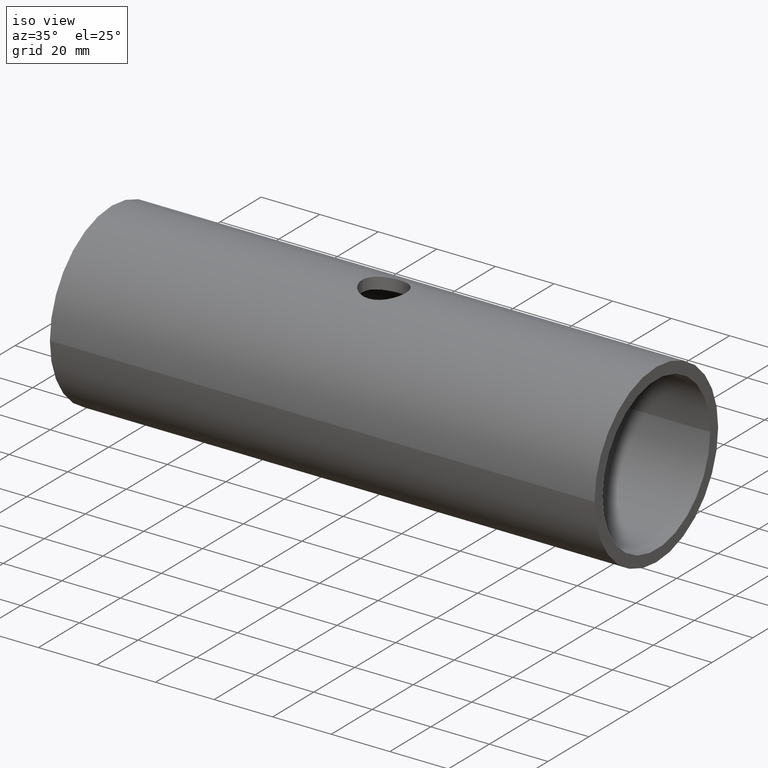
[diagram: clean part render]
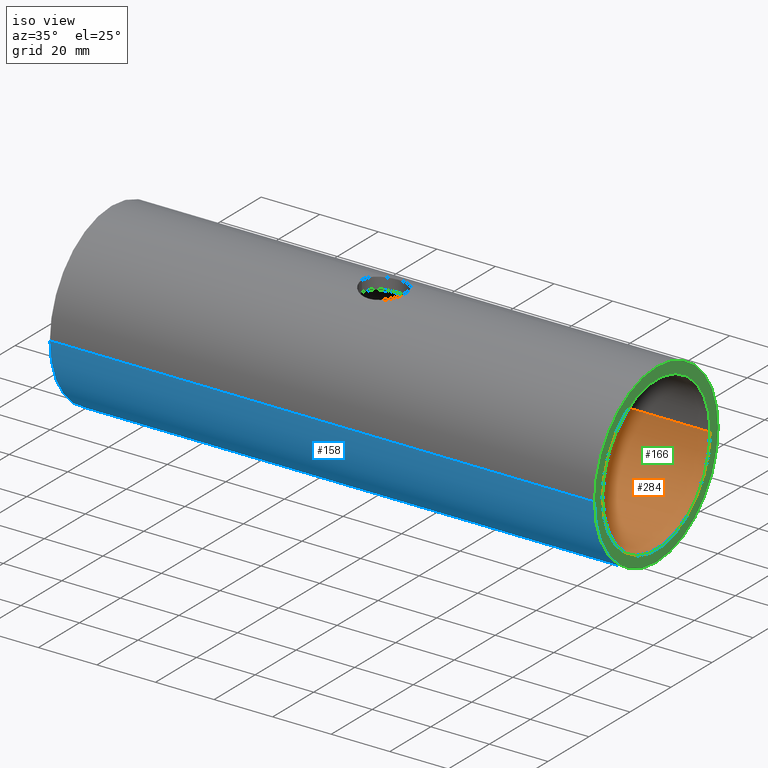
[diagram: same view with three faces highlighted in distinct colors, each labeled with its STEP entity id]
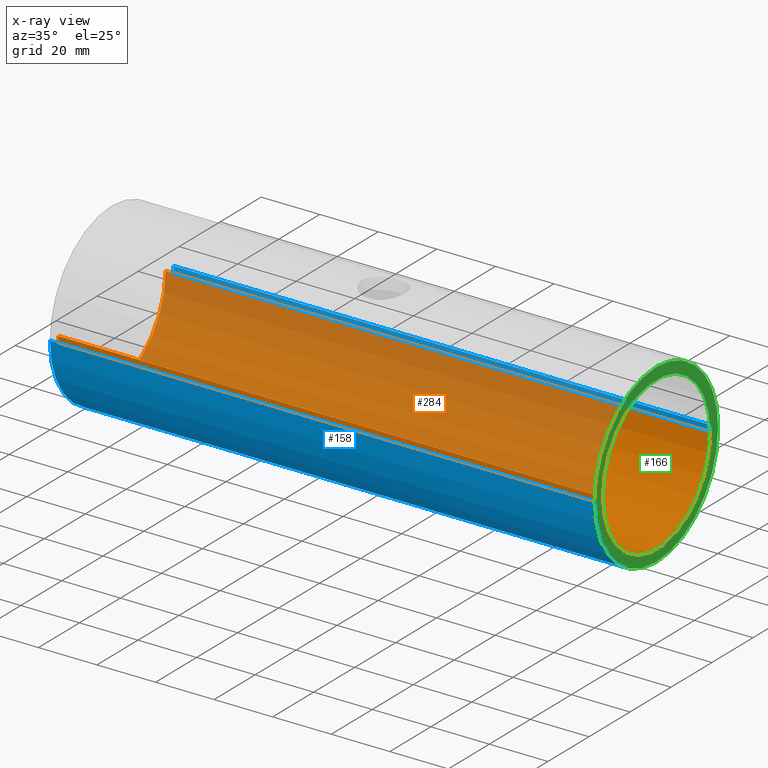
[diagram: x-ray of the same camera — body ghosted, the three highlighted faces saturated]
A machine part, iso view with three faces highlighted in distinct colors.
The next image is the same camera in x-ray (body ghosted, the three faces saturated) — at least one of them is partly hidden behind the body in this view.
Their STEP definitions:

[orange] entity #284 — the highlighted cylindrical surface (partial cylindrical patch) has radius 26.25 mm, axis along (1, 0, -0).
#27 = DIRECTION ( 'NONE',  ( 1.000000000000000000, 3.061616997868383141E-16, -0.000000000000000000 ) ) ;
#34 = LINE ( 'NONE', #222, #143 ) ;
#42 = DIRECTION ( 'NONE',  ( 1.000000000000000000, 3.061616997868383141E-16, -0.000000000000000000 ) ) ;
#55 = DIRECTION ( 'NONE',  ( 5.286776307738840622E-16, -1.000000000000000000, 0.000000000000000000 ) ) ;
#58 = CARTESIAN_POINT ( 'NONE',  ( -93.00000000000000000, -1.665519646840400224E-14, 0.000000000000000000 ) ) ;
#77 = EDGE_CURVE ( 'NONE', #357, #145, #296, .T. ) ;
#85 = CARTESIAN_POINT ( 'NONE',  ( -93.00000000000001421, 26.24999999999998224, 0.000000000000000000 ) ) ;
#87 = CARTESIAN_POINT ( 'NONE',  ( 93.00000000000000000, 4.029087969194792054E-14, 0.000000000000000000 ) ) ;
#88 = EDGE_CURVE ( 'NONE', #466, #98, #34, .T. ) ;
#98 = VERTEX_POINT ( 'NONE', #263 ) ;
#112 = DIRECTION ( 'NONE',  ( -5.286776307738840622E-16, 1.000000000000000000, 0.000000000000000000 ) ) ;
#133 = EDGE_LOOP ( 'NONE', ( #436, #214, #292, #320 ) ) ;
#143 = VECTOR ( 'NONE', #383, 1000.000000000000000 ) ;
#144 = AXIS2_PLACEMENT_3D ( 'NONE', #87, #202, #422 ) ;
#145 = VERTEX_POINT ( 'NONE', #279 ) ;
#168 = CIRCLE ( 'NONE', #228, 26.25000000000000000 ) ;
#179 = FACE_OUTER_BOUND ( 'NONE', #133, .T. ) ;
#202 = DIRECTION ( 'NONE',  ( -1.000000000000000000, -3.061616997868383141E-16, 0.000000000000000000 ) ) ;
#203 = AXIS2_PLACEMENT_3D ( 'NONE', #329, #27, #112 ) ;
#204 = DIRECTION ( 'NONE',  ( -1.000000000000000000, -3.061616997868383141E-16, 0.000000000000000000 ) ) ;
#206 = EDGE_CURVE ( 'NONE', #98, #145, #437, .T. ) ;
#214 = ORIENTED_EDGE ( 'NONE', *, *, #77, .T. ) ;
#222 = CARTESIAN_POINT ( 'NONE',  ( -93.00000000000001421, 26.24999999999998224, 0.000000000000000000 ) ) ;
#228 = AXIS2_PLACEMENT_3D ( 'NONE', #58, #204, #55 ) ;
#233 = EDGE_CURVE ( 'NONE', #466, #357, #168, .T. ) ;
#241 = VECTOR ( 'NONE', #42, 1000.000000000000000 ) ;
#253 = CYLINDRICAL_SURFACE ( 'NONE', #203, 26.25000000000000000 ) ;
#263 = CARTESIAN_POINT ( 'NONE',  ( 92.99999999999998579, 26.25000000000003553, 0.000000000000000000 ) ) ;
#279 = CARTESIAN_POINT ( 'NONE',  ( 93.00000000000001421, -26.24999999999995737, 3.214697847761801189E-15 ) ) ;
#284 = ADVANCED_FACE ( 'NONE', ( #179 ), #253, .F. ) ;
#292 = ORIENTED_EDGE ( 'NONE', *, *, #206, .F. ) ;
#296 = LINE ( 'NONE', #443, #241 ) ;
#320 = ORIENTED_EDGE ( 'NONE', *, *, #88, .F. ) ;
#329 = CARTESIAN_POINT ( 'NONE',  ( -93.00000000000000000, -1.665519646840400224E-14, 0.000000000000000000 ) ) ;
#357 = VERTEX_POINT ( 'NONE', #412 ) ;
#383 = DIRECTION ( 'NONE',  ( 1.000000000000000000, 3.061616997868383141E-16, -0.000000000000000000 ) ) ;
#412 = CARTESIAN_POINT ( 'NONE',  ( -92.99999999999998579, -26.25000000000001421, 3.214697847761804739E-15 ) ) ;
#422 = DIRECTION ( 'NONE',  ( 5.286776307738840622E-16, -1.000000000000000000, 0.000000000000000000 ) ) ;
#436 = ORIENTED_EDGE ( 'NONE', *, *, #233, .T. ) ;
#437 = CIRCLE ( 'NONE', #144, 26.25000000000000000 ) ;
#443 = CARTESIAN_POINT ( 'NONE',  ( -92.99999999999998579, -26.25000000000001776, 3.214697847761801189E-15 ) ) ;
#466 = VERTEX_POINT ( 'NONE', #85 ) ;

[blue] entity #158 — the highlighted cylindrical surface (partial cylindrical patch) has radius 30.15 mm, axis along (1, 0, -0).
#1 = DIRECTION ( 'NONE',  ( 4.602914695792523219E-16, -1.000000000000000000, 0.000000000000000000 ) ) ;
#26 = VERTEX_POINT ( 'NONE', #159 ) ;
#38 = EDGE_CURVE ( 'NONE', #101, #86, #308, .T. ) ;
#39 = AXIS2_PLACEMENT_3D ( 'NONE', #100, #169, #171 ) ;
#66 = VERTEX_POINT ( 'NONE', #119 ) ;
#70 = EDGE_CURVE ( 'NONE', #26, #66, #259, .T. ) ;
#80 = CARTESIAN_POINT ( 'NONE',  ( -93.00000000000001421, 30.14999999999998082, 0.000000000000000000 ) ) ;
#86 = VERTEX_POINT ( 'NONE', #113 ) ;
#100 = CARTESIAN_POINT ( 'NONE',  ( -93.00000000000000000, -1.665519646840400224E-14, 0.000000000000000000 ) ) ;
#101 = VERTEX_POINT ( 'NONE', #80 ) ;
#113 = CARTESIAN_POINT ( 'NONE',  ( 92.99999999999998579, 30.15000000000004476, 0.000000000000000000 ) ) ;
#117 = CIRCLE ( 'NONE', #465, 30.14999999999999858 ) ;
#119 = CARTESIAN_POINT ( 'NONE',  ( 93.00000000000001421, -30.14999999999995950, 3.692310099429269608E-15 ) ) ;
#124 = DIRECTION ( 'NONE',  ( -1.000000000000000000, -3.061616997868383141E-16, 0.000000000000000000 ) ) ;
#127 = EDGE_CURVE ( 'NONE', #86, #66, #117, .T. ) ;
#139 = DIRECTION ( 'NONE',  ( 1.000000000000000000, 3.061616997868383141E-16, -0.000000000000000000 ) ) ;
#149 = CARTESIAN_POINT ( 'NONE',  ( -92.99999999999998579, -30.15000000000001634, 3.692310099429269608E-15 ) ) ;
#152 = EDGE_CURVE ( 'NONE', #101, #26, #190, .T. ) ;
#154 = VECTOR ( 'NONE', #269, 1000.000000000000000 ) ;
#158 = ADVANCED_FACE ( 'NONE', ( #315 ), #464, .T. ) ;
#159 = CARTESIAN_POINT ( 'NONE',  ( -92.99999999999998579, -30.15000000000001990, 3.692310099429272763E-15 ) ) ;
#165 = CARTESIAN_POINT ( 'NONE',  ( -93.00000000000001421, 30.14999999999998082, 0.000000000000000000 ) ) ;
#169 = DIRECTION ( 'NONE',  ( -1.000000000000000000, -3.061616997868383141E-16, 0.000000000000000000 ) ) ;
#171 = DIRECTION ( 'NONE',  ( 4.602914695792523219E-16, -1.000000000000000000, 0.000000000000000000 ) ) ;
#190 = CIRCLE ( 'NONE', #39, 30.14999999999999858 ) ;
#207 = DIRECTION ( 'NONE',  ( -4.602914695792523219E-16, 1.000000000000000000, 0.000000000000000000 ) ) ;
#217 = ORIENTED_EDGE ( 'NONE', *, *, #152, .F. ) ;
#256 = ORIENTED_EDGE ( 'NONE', *, *, #70, .F. ) ;
#259 = LINE ( 'NONE', #149, #154 ) ;
#269 = DIRECTION ( 'NONE',  ( 1.000000000000000000, 3.061616997868383141E-16, -0.000000000000000000 ) ) ;
#308 = LINE ( 'NONE', #165, #413 ) ;
#315 = FACE_OUTER_BOUND ( 'NONE', #334, .T. ) ;
#330 = ORIENTED_EDGE ( 'NONE', *, *, #127, .T. ) ;
#334 = EDGE_LOOP ( 'NONE', ( #256, #217, #364, #330 ) ) ;
#348 = CARTESIAN_POINT ( 'NONE',  ( 93.00000000000000000, 4.029087969194792054E-14, 0.000000000000000000 ) ) ;
#364 = ORIENTED_EDGE ( 'NONE', *, *, #38, .T. ) ;
#387 = CARTESIAN_POINT ( 'NONE',  ( -93.00000000000000000, -1.665519646840400224E-14, 0.000000000000000000 ) ) ;
#413 = VECTOR ( 'NONE', #454, 1000.000000000000000 ) ;
#454 = DIRECTION ( 'NONE',  ( 1.000000000000000000, 3.061616997868383141E-16, -0.000000000000000000 ) ) ;
#458 = AXIS2_PLACEMENT_3D ( 'NONE', #387, #139, #207 ) ;
#464 = CYLINDRICAL_SURFACE ( 'NONE', #458, 30.14999999999999858 ) ;
#465 = AXIS2_PLACEMENT_3D ( 'NONE', #348, #124, #1 ) ;

[green] entity #166 — the highlighted planar face has unit normal (-1, -0, 0).
#1 = DIRECTION ( 'NONE',  ( 4.602914695792523219E-16, -1.000000000000000000, 0.000000000000000000 ) ) ;
#2 = AXIS2_PLACEMENT_3D ( 'NONE', #445, #294, #103 ) ;
#4 = EDGE_LOOP ( 'NONE', ( #392, #283 ) ) ;
#24 = EDGE_LOOP ( 'NONE', ( #60, #475 ) ) ;
#49 = DIRECTION ( 'NONE',  ( -1.000000000000000000, -3.061616997868383141E-16, 0.000000000000000000 ) ) ;
#60 = ORIENTED_EDGE ( 'NONE', *, *, #206, .T. ) ;
#66 = VERTEX_POINT ( 'NONE', #119 ) ;
#86 = VERTEX_POINT ( 'NONE', #113 ) ;
#87 = CARTESIAN_POINT ( 'NONE',  ( 93.00000000000000000, 4.029087969194792054E-14, 0.000000000000000000 ) ) ;
#90 = DIRECTION ( 'NONE',  ( 3.061616997868383141E-16, -1.000000000000000000, 0.000000000000000000 ) ) ;
#97 = DIRECTION ( 'NONE',  ( 5.286776307738840622E-16, -1.000000000000000000, 0.000000000000000000 ) ) ;
#98 = VERTEX_POINT ( 'NONE', #263 ) ;
#103 = DIRECTION ( 'NONE',  ( 4.602914695792523219E-16, -1.000000000000000000, 0.000000000000000000 ) ) ;
#113 = CARTESIAN_POINT ( 'NONE',  ( 92.99999999999998579, 30.15000000000004476, 0.000000000000000000 ) ) ;
#117 = CIRCLE ( 'NONE', #465, 30.14999999999999858 ) ;
#119 = CARTESIAN_POINT ( 'NONE',  ( 93.00000000000001421, -30.14999999999995950, 3.692310099429269608E-15 ) ) ;
#124 = DIRECTION ( 'NONE',  ( -1.000000000000000000, -3.061616997868383141E-16, 0.000000000000000000 ) ) ;
#125 = AXIS2_PLACEMENT_3D ( 'NONE', #417, #310, #97 ) ;
#127 = EDGE_CURVE ( 'NONE', #86, #66, #117, .T. ) ;
#132 = EDGE_CURVE ( 'NONE', #145, #98, #184, .T. ) ;
#136 = CARTESIAN_POINT ( 'NONE',  ( 93.00000000000000000, 4.029087969194792054E-14, 0.000000000000000000 ) ) ;
#144 = AXIS2_PLACEMENT_3D ( 'NONE', #87, #202, #422 ) ;
#145 = VERTEX_POINT ( 'NONE', #279 ) ;
#166 = ADVANCED_FACE ( 'NONE', ( #282, #250 ), #424, .F. ) ;
#184 = CIRCLE ( 'NONE', #125, 26.25000000000000000 ) ;
#202 = DIRECTION ( 'NONE',  ( -1.000000000000000000, -3.061616997868383141E-16, 0.000000000000000000 ) ) ;
#206 = EDGE_CURVE ( 'NONE', #98, #145, #437, .T. ) ;
#221 = AXIS2_PLACEMENT_3D ( 'NONE', #136, #49, #90 ) ;
#250 = FACE_OUTER_BOUND ( 'NONE', #4, .T. ) ;
#263 = CARTESIAN_POINT ( 'NONE',  ( 92.99999999999998579, 26.25000000000003553, 0.000000000000000000 ) ) ;
#277 = EDGE_CURVE ( 'NONE', #66, #86, #382, .T. ) ;
#279 = CARTESIAN_POINT ( 'NONE',  ( 93.00000000000001421, -26.24999999999995737, 3.214697847761801189E-15 ) ) ;
#282 = FACE_BOUND ( 'NONE', #24, .T. ) ;
#283 = ORIENTED_EDGE ( 'NONE', *, *, #277, .F. ) ;
#294 = DIRECTION ( 'NONE',  ( -1.000000000000000000, -3.061616997868383141E-16, 0.000000000000000000 ) ) ;
#310 = DIRECTION ( 'NONE',  ( -1.000000000000000000, -3.061616997868383141E-16, 0.000000000000000000 ) ) ;
#348 = CARTESIAN_POINT ( 'NONE',  ( 93.00000000000000000, 4.029087969194792054E-14, 0.000000000000000000 ) ) ;
#382 = CIRCLE ( 'NONE', #2, 30.14999999999999858 ) ;
#392 = ORIENTED_EDGE ( 'NONE', *, *, #127, .F. ) ;
#417 = CARTESIAN_POINT ( 'NONE',  ( 93.00000000000000000, 4.029087969194792054E-14, 0.000000000000000000 ) ) ;
#422 = DIRECTION ( 'NONE',  ( 5.286776307738840622E-16, -1.000000000000000000, 0.000000000000000000 ) ) ;
#424 = PLANE ( 'NONE',  #221 ) ;
#437 = CIRCLE ( 'NONE', #144, 26.25000000000000000 ) ;
#445 = CARTESIAN_POINT ( 'NONE',  ( 93.00000000000000000, 4.029087969194792054E-14, 0.000000000000000000 ) ) ;
#465 = AXIS2_PLACEMENT_3D ( 'NONE', #348, #124, #1 ) ;
#475 = ORIENTED_EDGE ( 'NONE', *, *, #132, .T. ) ;